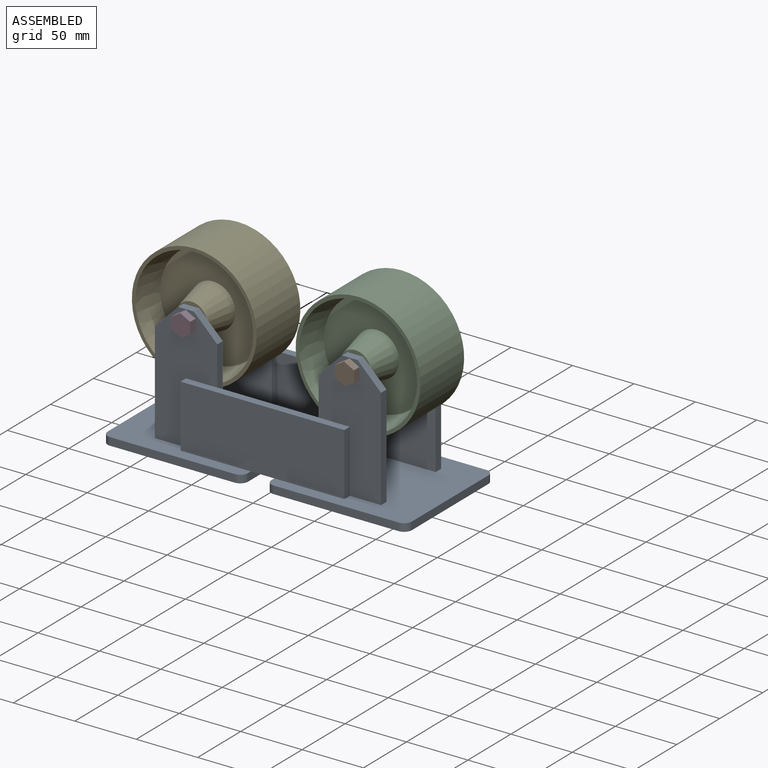
[diagram: assembled view]
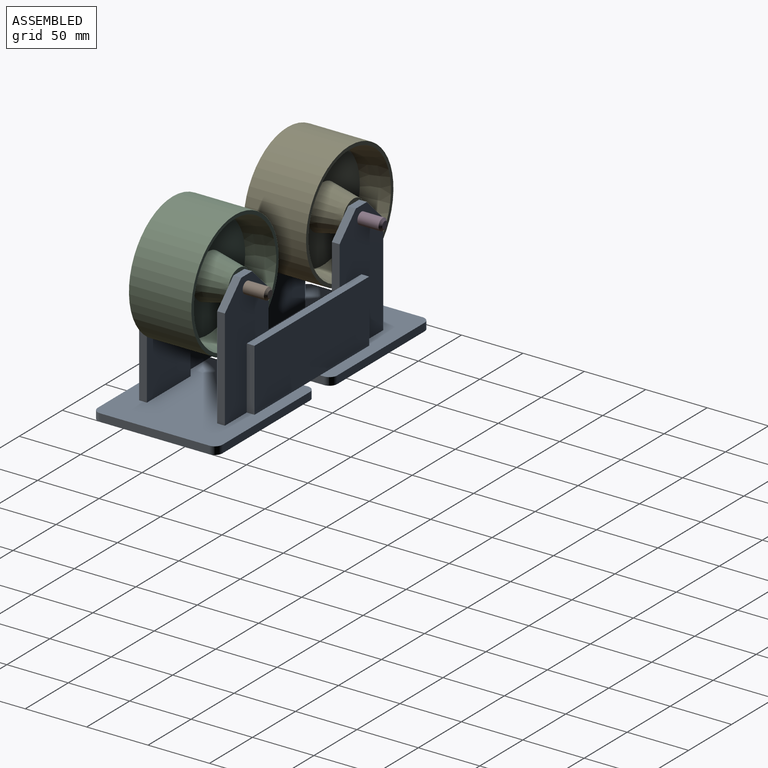
[diagram: assembled view, second angle]
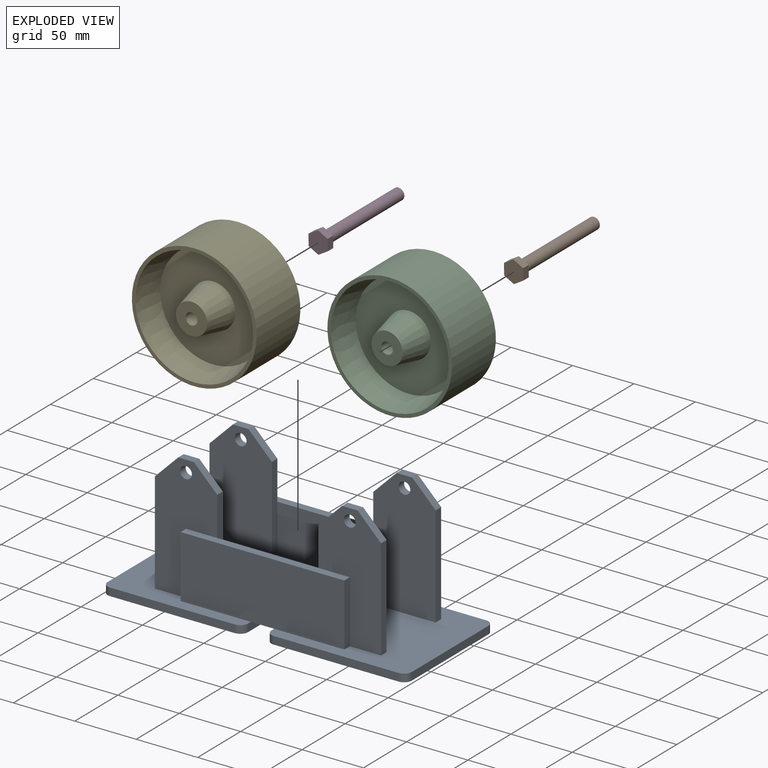
[diagram: exploded view]
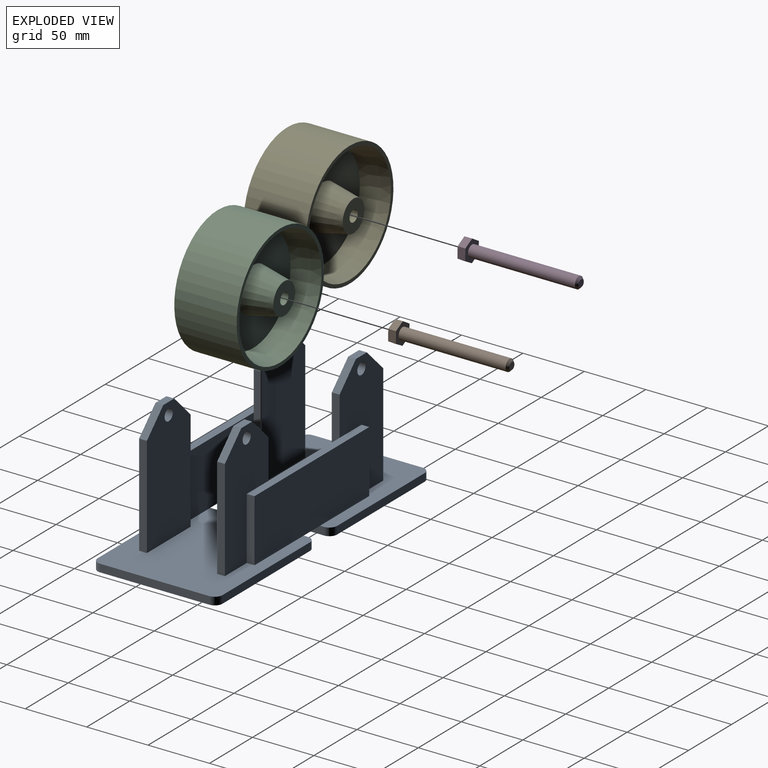
[diagram: exploded view, second angle]
ASSEMBLY  parts=5 mates=4
PART A: 64 faces, bbox 247.7x101.6x108 mm
  f0: plane 101.6x50.8mm, normal (0,1,0), area 3436.8mm2, adj f3,f13,f15,f16,f22,f23,f26,f60
  f1: plane 101.6x50.8mm, normal (0,1,0), area 3436.8mm2, adj f28,f38,f40,f41,f48,f49,f52,f61
  f2: plane 101.6x50.8mm, normal (0,-1,0), area 3436.8mm2, adj f3,f17,f19,f20,f21,f24,f25,f54
  f3: plane 114.3x101.6mm, normal (0,0,1), area 10207.3mm2, adj f0,f2,f4,f5,f6,f7,f8,f9
  f4: plane 101.6x6.35mm, normal (0,-1,0), area 645.2mm2, adj f3,f5,f11,f12
  f5: cylinder r=6.35mm len=6.35mm, axis (0,0,-1), area 63.3mm2, adj f3,f4,f6,f12
  f6: plane 88.9x6.35mm, normal (1,0,0), area 564.5mm2, adj f3,f5,f7,f12
  f7: cylinder r=6.35mm len=6.35mm, axis (0,0,-1), area 63.3mm2, adj f3,f6,f8,f12
  f8: plane 101.6x6.35mm, normal (0,1,0), area 645.2mm2, adj f3,f7,f9,f12
  f9: cylinder r=6.35mm len=6.35mm, axis (0,0,-1), area 63.3mm2, adj f3,f8,f10,f12
  f10: plane 88.9x6.35mm, normal (-1,0,0), area 564.5mm2, adj f3,f9,f11,f12,f53,f59
  f11: cylinder r=6.35mm len=6.35mm, axis (0,0,-1), area 63.3mm2, adj f3,f4,f10,f12
  f12: plane 114.3x101.6mm, normal (0,0,-1), area 11578.3mm2, adj f4,f5,f6,f7,f8,f9,f10,f11
  f13: plane 82.55x6.35mm, normal (-1,0,0), area 524.2mm2, adj f0,f3,f14,f23,f58
  f14: plane 101.6x50.8mm, normal (0,-1,0), area 4727.1mm2, adj f3,f13,f15,f16,f22,f23,f26
  f15: plane 82.55x6.35mm, normal (1,0,0), area 524.2mm2, adj f0,f3,f14,f26
  f16: plane 12.7x6.35mm, normal (0,0,1), area 80.6mm2, adj f0,f14,f23,f26
  f17: plane 82.55x6.35mm, normal (1,0,0), area 524.2mm2, adj f2,f3,f18,f25
  f18: plane 101.6x50.8mm, normal (0,1,0), area 4727.1mm2, adj f3,f17,f19,f20,f21,f24,f25
  f19: plane 82.55x6.35mm, normal (-1,0,0), area 524.2mm2, adj f2,f3,f18,f24,f27
  f20: plane 12.7x6.35mm, normal (0,0,1), area 80.6mm2, adj f2,f18,f24,f25
  f21: cylinder r=4.76mm len=9.53mm, axis (0,-1,0), area 190mm2, adj f2,f18
  f22: cylinder r=4.76mm len=9.53mm, axis (0,-1,0), area 190mm2, adj f0,f14
  f23: plane 19.05x19.05mm, normal (-0.71,0,0.71), area 171.1mm2, adj f0,f13,f14,f16
  f24: plane 19.05x19.05mm, normal (-0.71,0,0.71), area 171.1mm2, adj f2,f18,f19,f20
  f25: plane 19.05x19.05mm, normal (0.71,0,0.71), area 171.1mm2, adj f2,f17,f18,f20
  f26: plane 19.05x19.05mm, normal (0.71,0,0.71), area 171.1mm2, adj f0,f14,f15,f16
  f27: plane 82.55x50.8mm, normal (0,1,0), area 4193.5mm2, adj f3,f19,f28,f44,f53,f55
  f28: plane 114.3x101.6mm, normal (0,0,1), area 10207.3mm2, adj f1,f27,f29,f30,f31,f32,f33,f34
  f29: plane 101.6x6.35mm, normal (0,-1,0), area 645.2mm2, adj f28,f30,f36,f37
  f30: cylinder r=6.35mm len=6.35mm, axis (0,0,-1), area 63.3mm2, adj f28,f29,f31,f37
  f31: plane 88.9x6.35mm, normal (-1,0,0), area 564.5mm2, adj f28,f30,f32,f37
  f32: cylinder r=6.35mm len=6.35mm, axis (0,0,-1), area 63.3mm2, adj f28,f31,f33,f37
  f33: plane 101.6x6.35mm, normal (0,1,0), area 645.2mm2, adj f28,f32,f34,f37
  f34: cylinder r=6.35mm len=6.35mm, axis (0,0,-1), area 63.3mm2, adj f28,f33,f35,f37
  f35: plane 88.9x6.35mm, normal (1,0,0), area 564.5mm2, adj f28,f34,f36,f37,f53,f59
  f36: cylinder r=6.35mm len=6.35mm, axis (0,0,-1), area 63.3mm2, adj f28,f29,f35,f37
  f37: plane 114.3x101.6mm, normal (0,0,-1), area 11578.3mm2, adj f29,f30,f31,f32,f33,f34,f35,f36
  f38: plane 82.55x6.35mm, normal (1,0,0), area 524.2mm2, adj f1,f28,f39,f49,f58
  f39: plane 101.6x50.8mm, normal (0,-1,0), area 4727.1mm2, adj f28,f38,f40,f41,f48,f49,f52
  f40: plane 82.55x6.35mm, normal (-1,0,0), area 524.2mm2, adj f1,f28,f39,f52
  f41: plane 12.7x6.35mm, normal (0,0,1), area 80.6mm2, adj f1,f39,f49,f52
  f42: plane 82.55x6.35mm, normal (-1,0,0), area 524.2mm2, adj f28,f43,f45,f51
  f43: plane 101.6x50.8mm, normal (0,1,0), area 4727.1mm2, adj f28,f42,f44,f46,f47,f50,f51
  f44: plane 82.55x6.35mm, normal (1,0,0), area 524.2mm2, adj f27,f28,f43,f45,f50
  f45: plane 101.6x50.8mm, normal (0,-1,0), area 3436.8mm2, adj f28,f42,f44,f46,f47,f50,f51,f55
  f46: plane 12.7x6.35mm, normal (0,0,1), area 80.6mm2, adj f43,f45,f50,f51
  f47: cylinder r=4.76mm len=9.53mm, axis (0,-1,0), area 190mm2, adj f43,f45
  f48: cylinder r=4.76mm len=9.53mm, axis (0,-1,0), area 190mm2, adj f1,f39
  f49: plane 19.05x19.05mm, normal (0.71,0,0.71), area 171.1mm2, adj f1,f38,f39,f41
  f50: plane 19.05x19.05mm, normal (0.71,0,0.71), area 171.1mm2, adj f43,f44,f45,f46
  f51: plane 19.05x19.05mm, normal (-0.71,0,0.71), area 171.1mm2, adj f42,f43,f45,f46
  f52: plane 19.05x19.05mm, normal (-0.71,0,0.71), area 171.1mm2, adj f1,f39,f40,f41
  f53: plane 19.05x6.35mm, normal (0,0,-1), area 121mm2, adj f10,f27,f35,f57
  f54: plane 50.8x6.35mm, normal (1,0,0), area 322.6mm2, adj f2,f3,f55,f57
  f55: plane 133.35x6.35mm, normal (0,0,1), area 846.8mm2, adj f2,f27,f45,f54,f56,f57
  f56: plane 50.8x6.35mm, normal (-1,0,0), area 322.6mm2, adj f28,f45,f55,f57
  f57: plane 133.35x50.8mm, normal (0,-1,0), area 6774.2mm2, adj f3,f28,f53,f54,f55,f56
  f58: plane 82.55x50.8mm, normal (0,-1,0), area 4193.5mm2, adj f3,f13,f28,f38,f59,f62
  f59: plane 19.05x6.35mm, normal (0,0,-1), area 121mm2, adj f10,f35,f58,f63
  f60: plane 50.8x6.35mm, normal (1,0,0), area 322.6mm2, adj f0,f3,f62,f63
  f61: plane 50.8x6.35mm, normal (-1,0,0), area 322.6mm2, adj f1,f28,f62,f63
  f62: plane 133.35x6.35mm, normal (0,0,1), area 846.8mm2, adj f0,f1,f58,f60,f61,f63
  f63: plane 133.35x50.8mm, normal (0,1,0), area 6774.2mm2, adj f3,f28,f59,f60,f61,f62
PART B: 11 faces, bbox 15.8x95.3x18 mm
  f0: cylinder r=4.76mm len=87.12mm, axis (0,1,0), area 2607mm2, adj f9,f10
  f1: plane 5.97x5.97mm, normal (0,1,0), area 28mm2, adj f10
  f2: plane 7.71x6.35mm, normal (-0.52,0,0.85), area 57.3mm2, adj f3,f7,f8,f9
  f3: plane 9.02x6.35mm, normal (-1,0,-0.02), area 57.3mm2, adj f2,f4,f8,f9
  f4: plane 7.92x6.35mm, normal (-0.48,0,-0.88), area 57.3mm2, adj f3,f5,f8,f9
  f5: plane 7.71x6.35mm, normal (0.52,0,-0.85), area 57.3mm2, adj f4,f6,f8,f9
  f6: plane 9.02x6.35mm, normal (1,0,0.02), area 57.3mm2, adj f5,f7,f8,f9
  f7: plane 7.92x6.35mm, normal (0.48,0,0.88), area 57.3mm2, adj f2,f6,f8,f9
  f8: plane 18.05x15.84mm, normal (0,-1,0), area 211.7mm2, adj f2,f3,f4,f5,f6,f7
  f9: plane 18.05x15.84mm, normal (0,1,0), area 140.4mm2, adj f0,f2,f3,f4,f5,f6,f7
  f10: cone r=4.76mm half-angle=45deg, axis (0,-1,0), area 61.2mm2, adj f0,f1
PART C: 12 faces, bbox 101.6x57.2x101.6 mm
  f0: plane 25.4x25.4mm, normal (0,1,0), area 435.5mm2, adj f10,f11
  f1: plane 25.4x25.4mm, normal (0,-1,0), area 435.5mm2, adj f2,f11
  f2: cone r=18.02mm half-angle=11.9deg, axis (0,1,0), area 2479.4mm2, adj f1,f3
  f3: plane 86.23x86.23mm, normal (0,-1,0), area 4820.4mm2, adj f2,f4
  f4: cone r=47.96mm half-angle=12.4deg, axis (0,-1,0), area 6434mm2, adj f3,f5
  f5: plane 101.6x101.6mm, normal (0,-1,0), area 882mm2, adj f4,f6
  f6: cylinder r=50.8mm len=101.6mm, axis (0,1,0), area 16214.6mm2, adj f5,f7
  f7: plane 101.6x101.6mm, normal (0,1,0), area 882mm2, adj f6,f8
  f8: cone r=47.96mm half-angle=12.4deg, axis (0,1,0), area 6434mm2, adj f7,f9
  f9: plane 86.23x86.23mm, normal (0,1,0), area 4820.4mm2, adj f8,f10
  f10: cone r=18.02mm half-angle=11.9deg, axis (0,-1,0), area 2479.4mm2, adj f0,f9
  f11: cylinder r=4.76mm len=57.15mm, axis (0,-1,0), area 1710.1mm2, adj f0,f1
PART D: same geometry as B
PART E: same geometry as C
PLACE A t=(-61.11,561.25,-209.08)mm
PLACE B t=(-126.26,650.15,-199.71)mm
PLACE C t=(-210.74,566.69,-117)mm
PLACE D t=(-259.61,650.15,-199.71)mm
PLACE E t=(-344.09,566.69,-117)mm
MATE revolute C.f2 <-> A.f21  axis (0,-1,0) through (-3.96,-110.98,-110.65)mm
MATE revolute A.f21 <-> B.f0  axis (0,-1,0) through (-3.96,-117.33,-110.65)mm
MATE revolute A.f47 <-> D.f0  axis (0,-1,0) through (-137.31,-117.33,-110.65)mm
MATE revolute E.f2 <-> A.f47  axis (0,-1,0) through (-137.31,-110.98,-110.65)mm
